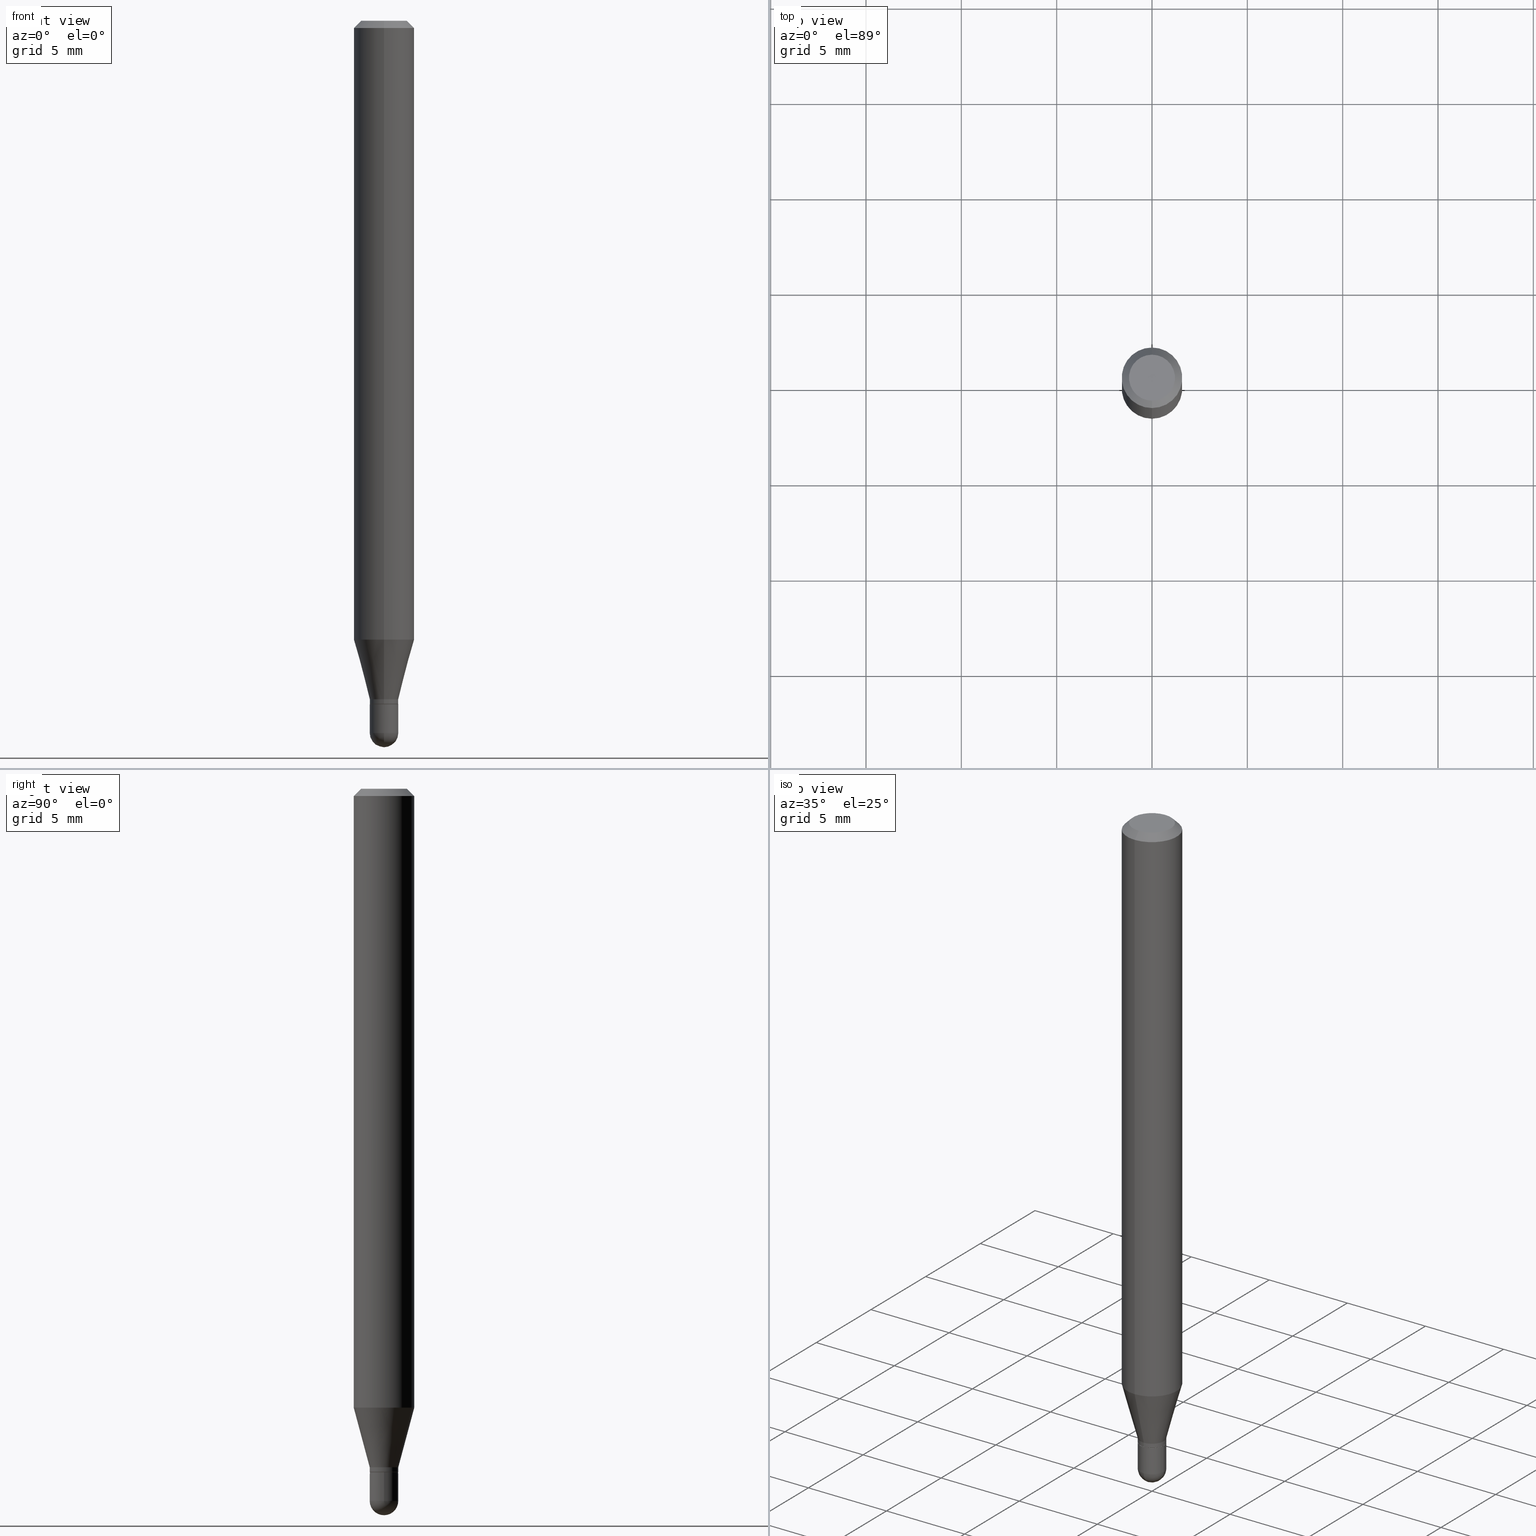
[diagram: canonical four-view strip — front | top / right | iso, engineering-drawing reading convention]
A machine part, canonical four-view strip (front | top / right | iso — engineering-drawing reading convention). The complete STEP part file that produces these views, byte-faithful:
ISO-10303-21;
HEADER;
FILE_DESCRIPTION (( 'STEP AP203' ),
    '1' );
FILE_NAME ('02556.STEP',
    '2024-03-07T20:24:52',
    ( '' ),
    ( '' ),
    'SwSTEP 2.0',
    'SolidWorks 2023',
    '' );
FILE_SCHEMA (( 'CONFIG_CONTROL_DESIGN' ));
ENDSEC;

DATA;
#1 = CIRCLE ( 'NONE', #320, 0.04749999999999999362 ) ;
#2 = CIRCLE ( 'NONE', #128, 0.02899999999999999800 ) ;
#3 = DIRECTION ( 'NONE',  ( -2.445481567641216493E-29, 3.491463063711701769E-15, 1.000000000000000000 ) ) ;
#4 = EDGE_LOOP ( 'NONE', ( #182, #134, #194, #20 ) ) ;
#5 = ADVANCED_FACE ( 'NONE', ( #508 ), #465, .T. ) ;
#6 = DIRECTION ( 'NONE',  ( 1.000000000000000000, -6.982962677686265922E-15, 4.883557194083112340E-29 ) ) ;
#7 = EDGE_CURVE ( 'NONE', #97, #218, #459, .T. ) ;
#8 = AXIS2_PLACEMENT_3D ( 'NONE', #153, #46, #313 ) ;
#9 = LOCAL_TIME ( 15, 24, 52.00000000000000000, #389 ) ;
#10 = DIRECTION ( 'NONE',  ( -2.445481567641216773E-29, 3.491463063711701769E-15, 1.000000000000000000 ) ) ;
#11 = LINE ( 'NONE', #56, #433 ) ;
#12 =( CONVERSION_BASED_UNIT ( 'INCH', #367 ) LENGTH_UNIT ( ) NAMED_UNIT ( #364 ) );
#13 = ORIENTED_EDGE ( 'NONE', *, *, #98, .T. ) ;
#14 = PRODUCT_RELATED_PRODUCT_CATEGORY ( 'detail', '', ( #335 ) ) ;
#15 = DATE_TIME_ROLE ( 'creation_date' ) ;
#16 = DIRECTION ( 'NONE',  ( 1.000000000000000000, -6.982962677686265922E-15, 4.876176775795935793E-29 ) ) ;
#17 = ORIENTED_EDGE ( 'NONE', *, *, #121, .F. ) ;
#18 = AXIS2_PLACEMENT_3D ( 'NONE', #431, #319, #236 ) ;
#19 = CARTESIAN_POINT ( 'NONE',  ( 3.426119676265345091E-29, -4.891539752260095021E-15, -1.401000000000000245 ) ) ;
#20 = ORIENTED_EDGE ( 'NONE', *, *, #385, .F. ) ;
#21 = COORDINATED_UNIVERSAL_TIME_OFFSET ( 5, 0, .BEHIND. ) ;
#22 = CARTESIAN_POINT ( 'NONE',  ( 3.596061879495243621E-29, -5.134223308768845522E-15, -1.470500000000000140 ) ) ;
#23 = ORIENTED_EDGE ( 'NONE', *, *, #151, .F. ) ;
#24 = CALENDAR_DATE ( 2024, 7, 3 ) ;
#25 = FACE_OUTER_BOUND ( 'NONE', #4, .T. ) ;
#26 = EDGE_LOOP ( 'NONE', ( #235, #261, #425, #455 ) ) ;
#27 = EDGE_CURVE ( 'NONE', #292, #479, #399, .T. ) ;
#28 = DATE_AND_TIME ( #219, #69 ) ;
#29 = AXIS2_PLACEMENT_3D ( 'NONE', #63, #328, #217 ) ;
#30 = ORIENTED_EDGE ( 'NONE', *, *, #289, .F. ) ;
#31 = ORIENTED_EDGE ( 'NONE', *, *, #474, .F. ) ;
#32 = DATE_AND_TIME ( #181, #9 ) ;
#33 = CC_DESIGN_DATE_AND_TIME_ASSIGNMENT ( #125, #15, ( #314 ) ) ;
#34 = DIRECTION ( 'NONE',  ( 1.000000000000000000, -6.982962677686250144E-15, 0.000000000000000000 ) ) ;
#35 = EDGE_LOOP ( 'NONE', ( #382, #338, #358, #23 ) ) ;
#36 = APPROVAL_DATE_TIME ( #504, #442 ) ;
#37 = FACE_OUTER_BOUND ( 'NONE', #491, .T. ) ;
#38 = FACE_OUTER_BOUND ( 'NONE', #225, .T. ) ;
#39 = VECTOR ( 'NONE', #42, 39.37007874015748143 ) ;
#40 = DIRECTION ( 'NONE',  ( -2.445481567641216773E-29, 3.491463063711701769E-15, 1.000000000000000000 ) ) ;
#41 = CARTESIAN_POINT ( 'NONE',  ( 3.668222351461905752E-31, -5.237194595567666989E-17, -0.01500000000000032904 ) ) ;
#42 = DIRECTION ( 'NONE',  ( -2.445481567641216773E-29, 3.491463063711701769E-15, 1.000000000000000000 ) ) ;
#43 = DIRECTION ( 'NONE',  ( -2.445481567641216773E-29, 3.491463063711701769E-15, 1.000000000000000000 ) ) ;
#44 = CIRCLE ( 'NONE', #440, 0.06250000000000000000 ) ;
#45 = CIRCLE ( 'NONE', #373, 0.02899999999999999800 ) ;
#46 = DIRECTION ( 'NONE',  ( -2.445481567641216773E-29, 3.491463063711701769E-15, 1.000000000000000000 ) ) ;
#47 = EDGE_CURVE ( 'NONE', #422, #471, #397, .T. ) ;
#48 = CARTESIAN_POINT ( 'NONE',  ( 4.440892098500940720E-16, 0.06249999999999995143, -0.01500000000000054588 ) ) ;
#49 = PLANE ( 'NONE',  #60 ) ;
#50 = PRODUCT_DEFINITION_SHAPE ( 'NONE', 'NONE',  #314 ) ;
#51 = AXIS2_PLACEMENT_3D ( 'NONE', #270, #122, #349 ) ;
#52 = CIRCLE ( 'NONE', #148, 0.02949999999999999845 ) ;
#53 = CARTESIAN_POINT ( 'NONE',  ( 2.060573933704635277E-16, 0.02899999999999507139, -1.411000000000000032 ) ) ;
#54 = EDGE_CURVE ( 'NONE', #500, #415, #252, .T. ) ;
#55 = DIRECTION ( 'NONE',  ( 1.000000000000000000, -6.982962677686250144E-15, 0.000000000000000000 ) ) ;
#56 = CARTESIAN_POINT ( 'NONE',  ( -4.364351673553916201E-16, -0.06250000000000000000, 2.182164414819813606E-16 ) ) ;
#57 = EDGE_LOOP ( 'NONE', ( #116, #406 ) ) ;
#58 = AXIS2_PLACEMENT_3D ( 'NONE', #61, #366, #290 ) ;
#59 = APPROVAL_ROLE ( '' ) ;
#60 = AXIS2_PLACEMENT_3D ( 'NONE', #356, #279, #87 ) ;
#61 = CARTESIAN_POINT ( 'NONE',  ( 3.426119676265345091E-29, -4.891539752260095021E-15, -1.401000000000000245 ) ) ;
#62 = ORIENTED_EDGE ( 'NONE', *, *, #295, .F. ) ;
#63 = CARTESIAN_POINT ( 'NONE',  ( 3.450556485527227711E-29, -4.926480169107677920E-15, -1.411000000000000032 ) ) ;
#64 = ADVANCED_FACE ( 'NONE', ( #157 ), #435, .T. ) ;
#65 = ORIENTED_EDGE ( 'NONE', *, *, #47, .T. ) ;
#66 = ORIENTED_EDGE ( 'NONE', *, *, #280, .T. ) ;
#67 = AXIS2_PLACEMENT_3D ( 'NONE', #301, #40, #88 ) ;
#68 = VERTEX_POINT ( 'NONE', #473 ) ;
#69 = LOCAL_TIME ( 15, 24, 52.00000000000000000, #271 ) ;
#70 = FACE_OUTER_BOUND ( 'NONE', #391, .T. ) ;
#71 = EDGE_CURVE ( 'NONE', #502, #453, #339, .T. ) ;
#72 = CYLINDRICAL_SURFACE ( 'NONE', #99, 0.06250000000000000000 ) ;
#73 = EDGE_LOOP ( 'NONE', ( #329, #400, #429, #322, #215 ) ) ;
#74 = DIRECTION ( 'NONE',  ( -2.445481567641216773E-29, 3.491463063711701769E-15, 1.000000000000000000 ) ) ;
#75 = CARTESIAN_POINT ( 'NONE',  ( 3.664419098448086283E-29, -5.242641070350946204E-15, -1.500000000000000222 ) ) ;
#76 = DIRECTION ( 'NONE',  ( -2.445468806185136877E-29, 3.491481338843145188E-15, 1.000000000000000000 ) ) ;
#77 = DIRECTION ( 'NONE',  ( -6.982962677686265922E-15, -1.000000000000000000, 4.370956789862821150E-15 ) ) ;
#78 = CIRCLE ( 'NONE', #222, 0.02949999999999992212 ) ;
#79 = CARTESIAN_POINT ( 'NONE',  ( 2.096101070492299629E-16, 0.02950000000000006437, -1.029981603794954133E-16 ) ) ;
#80 = PERSON ( 'UNSPECIFIED', 'UNSPECIFIED', 'UNSPECIFIED', ('UNSPECIFIED'), ('UNSPECIFIED'), ('UNSPECIFIED') ) ;
#81 = FACE_OUTER_BOUND ( 'NONE', #372, .T. ) ;
#82 = CARTESIAN_POINT ( 'NONE',  ( -0.02950000000000000192, 2.096101070492295684E-16, -1.451085851625197342E-30 ) ) ;
#83 = DIRECTION ( 'NONE',  ( -2.445481567641216773E-29, 3.491463063711701769E-15, 1.000000000000000000 ) ) ;
#84 = CONICAL_SURFACE ( 'NONE', #8, 0.02950000000000019967, 0.2617993877991505736 ) ;
#85 = AXIS2_PLACEMENT_3D ( 'NONE', #147, #257, #308 ) ;
#86 = APPROVAL ( #374, 'UNSPECIFIED' ) ;
#87 = DIRECTION ( 'NONE',  ( 6.982962677686265922E-15, 1.000000000000000000, -3.491463063711701769E-15 ) ) ;
#88 = DIRECTION ( 'NONE',  ( -6.982962677686265133E-15, -1.000000000000000000, 3.491463063711701375E-15 ) ) ;
#89 = CARTESIAN_POINT ( 'NONE',  ( 3.426119676265345091E-29, -4.891539752260095021E-15, -1.401000000000000245 ) ) ;
#90 = EDGE_CURVE ( 'NONE', #142, #288, #316, .T. ) ;
#91 = AXIS2_PLACEMENT_3D ( 'NONE', #408, #487, #176 ) ;
#92 = CC_DESIGN_APPROVAL ( #86, ( #314 ) ) ;
#93 = DIRECTION ( 'NONE',  ( -6.982962677686265922E-15, -1.000000000000000000, 0.000000000000000000 ) ) ;
#94 = LINE ( 'NONE', #312, #234 ) ;
#95 = CARTESIAN_POINT ( 'NONE',  ( -2.059973989917119804E-16, -0.02950000000000509159, -1.401000000000000245 ) ) ;
#96 = CARTESIAN_POINT ( 'NONE',  ( 3.450574491941757256E-29, -4.926454382897210213E-15, -1.411000000000000032 ) ) ;
#97 = VERTEX_POINT ( 'NONE', #75 ) ;
#98 = EDGE_CURVE ( 'NONE', #479, #471, #161, .T. ) ;
#99 = AXIS2_PLACEMENT_3D ( 'NONE', #189, #460, #228 ) ;
#100 = VECTOR ( 'NONE', #310, 39.37007874015748143 ) ;
#101 = DIRECTION ( 'NONE',  ( -2.445481567641216773E-29, 3.491463063711701769E-15, 1.000000000000000000 ) ) ;
#102 = ORIENTED_EDGE ( 'NONE', *, *, #357, .T. ) ;
#103 = DIRECTION ( 'NONE',  ( -2.445481567641216773E-29, 3.491463063711701769E-15, 1.000000000000000000 ) ) ;
#104 = ORIENTED_EDGE ( 'NONE', *, *, #411, .F. ) ;
#105 = EDGE_LOOP ( 'NONE', ( #264, #177, #149, #143 ) ) ;
#106 = CC_DESIGN_PERSON_AND_ORGANIZATION_ASSIGNMENT ( #332, #130, ( #335 ) ) ;
#107 = EDGE_LOOP ( 'NONE', ( #282, #66, #30, #104 ) ) ;
#108 = EDGE_CURVE ( 'NONE', #297, #428, #1, .T. ) ;
#109 = LINE ( 'NONE', #266, #419 ) ;
#110 = ORIENTED_EDGE ( 'NONE', *, *, #285, .T. ) ;
#111 = DIRECTION ( 'NONE',  ( -2.445468806185136877E-29, 3.491481338843145188E-15, 1.000000000000000000 ) ) ;
#112 = CARTESIAN_POINT ( 'NONE',  ( 0.02950000000000000192, -5.236349137930006242E-15, -1.470500000000000140 ) ) ;
#113 = APPROVAL_ROLE ( '' ) ;
#114 = ADVANCED_FACE ( 'NONE', ( #193 ), #84, .T. ) ;
#115 = ORIENTED_EDGE ( 'NONE', *, *, #98, .F. ) ;
#116 = ORIENTED_EDGE ( 'NONE', *, *, #376, .T. ) ;
#117 = LINE ( 'NONE', #426, #100 ) ;
#118 = DIRECTION ( 'NONE',  ( -6.982962677686265922E-15, -1.000000000000000000, 3.491463063711701769E-15 ) ) ;
#119 = FACE_OUTER_BOUND ( 'NONE', #105, .T. ) ;
#120 = MANIFOLD_SOLID_BREP ( 'Body-Move/Copy2[2]', #467 ) ;
#121 = EDGE_CURVE ( 'NONE', #267, #422, #470, .T. ) ;
#122 = DIRECTION ( 'NONE',  ( -2.445468806185136597E-29, 3.491481338843145583E-15, 1.000000000000000000 ) ) ;
#123 = CARTESIAN_POINT ( 'NONE',  ( -4.364351673553605587E-16, -0.06250000000000449640, -1.277842323350228293 ) ) ;
#124 = CC_DESIGN_APPROVAL ( #442, ( #347 ) ) ;
#125 = DATE_AND_TIME ( #365, #190 ) ;
#126 = DIRECTION ( 'NONE',  ( -2.445468806185136597E-29, 3.491481338843145583E-15, 1.000000000000000000 ) ) ;
#127 = AXIS2_PLACEMENT_3D ( 'NONE', #454, #417, #16 ) ;
#128 = AXIS2_PLACEMENT_3D ( 'NONE', #323, #475, #318 ) ;
#129 = APPLICATION_PROTOCOL_DEFINITION ( 'international standard', 'config_control_design', 1994, #350 ) ;
#130 = PERSON_AND_ORGANIZATION_ROLE ( 'design_owner' ) ;
#131 = FACE_OUTER_BOUND ( 'NONE', #35, .T. ) ;
#132 = ADVANCED_FACE ( 'NONE', ( #81 ), #231, .F. ) ;
#133 = DIRECTION ( 'NONE',  ( -2.445481567641216773E-29, 3.491463063711701769E-15, 1.000000000000000000 ) ) ;
#134 = ORIENTED_EDGE ( 'NONE', *, *, #121, .T. ) ;
#135 = AXIS2_PLACEMENT_3D ( 'NONE', #483, #126, #55 ) ;
#136 = AXIS2_PLACEMENT_3D ( 'NONE', #244, #83, #159 ) ;
#137 = DIRECTION ( 'NONE',  ( -6.982962677686265922E-15, -1.000000000000000000, 3.483106191921935554E-15 ) ) ;
#138 = VERTEX_POINT ( 'NONE', #276 ) ;
#139 = APPROVAL_DATE_TIME ( #28, #416 ) ;
#140 = ADVANCED_FACE ( 'NONE', ( #38 ), #201, .T. ) ;
#141 = CARTESIAN_POINT ( 'NONE',  ( 0.02950000000000000192, -2.059973989917448660E-16, 1.438472148859801150E-30 ) ) ;
#142 = VERTEX_POINT ( 'NONE', #171 ) ;
#143 = ORIENTED_EDGE ( 'NONE', *, *, #260, .F. ) ;
#144 = CARTESIAN_POINT ( 'NONE',  ( -4.364351673553912750E-16, -0.06250000000000005551, -0.01500000000000011047 ) ) ;
#145 = DATE_TIME_ROLE ( 'classification_date' ) ;
#146 = CIRCLE ( 'NONE', #418, 0.06250000000000000000 ) ;
#147 = CARTESIAN_POINT ( 'NONE',  ( 8.024794349539244775E-45, -1.145715978236695572E-30, -3.281478157809032871E-16 ) ) ;
#148 = AXIS2_PLACEMENT_3D ( 'NONE', #183, #432, #186 ) ;
#149 = ORIENTED_EDGE ( 'NONE', *, *, #162, .F. ) ;
#150 = DIRECTION ( 'NONE',  ( 1.000000000000000000, -7.105427357601001070E-15, 4.926315508542082329E-29 ) ) ;
#151 = EDGE_CURVE ( 'NONE', #267, #68, #78, .T. ) ;
#152 = PERSON_AND_ORGANIZATION_ROLE ( 'classification_officer' ) ;
#153 = CARTESIAN_POINT ( 'NONE',  ( 3.426119676265345091E-29, -4.891539752260095021E-15, -1.401000000000000245 ) ) ;
#154 = DIRECTION ( 'NONE',  ( -1.807323732225332111E-15, -0.2588190451025184635, 0.9659258262890689783 ) ) ;
#155 = AXIS2_PLACEMENT_3D ( 'NONE', #355, #3, #118 ) ;
#156 = SECURITY_CLASSIFICATION ( '', '', #187 ) ;
#157 = FACE_OUTER_BOUND ( 'NONE', #185, .T. ) ;
#158 = CARTESIAN_POINT ( 'NONE',  ( 2.096101070492652151E-16, 0.02949999999999530775, -1.401000000000000245 ) ) ;
#159 = DIRECTION ( 'NONE',  ( -6.982962677686265133E-15, -1.000000000000000000, 0.000000000000000000 ) ) ;
#160 = CARTESIAN_POINT ( 'NONE',  ( 3.668222351461905752E-31, -5.237194595567666989E-17, -0.01500000000000032904 ) ) ;
#161 = CIRCLE ( 'NONE', #371, 0.06250000000000000000 ) ;
#162 = EDGE_CURVE ( 'NONE', #142, #500, #354, .T. ) ;
#163 = LINE ( 'NONE', #53, #315 ) ;
#164 = EDGE_LOOP ( 'NONE', ( #246, #377, #229, #505 ) ) ;
#165 = ADVANCED_BREP_SHAPE_REPRESENTATION ( '02556', ( #283, #120, #468 ), #427 ) ;
#166 = DIRECTION ( 'NONE',  ( -2.445468806185136597E-29, 3.491481338843145583E-15, 1.000000000000000000 ) ) ;
#167 = ORIENTED_EDGE ( 'NONE', *, *, #401, .F. ) ;
#168 = CIRCLE ( 'NONE', #58, 0.02950000000000019967 ) ;
#169 = VECTOR ( 'NONE', #103, 39.37007874015748143 ) ;
#170 =( NAMED_UNIT ( * ) PLANE_ANGLE_UNIT ( ) SI_UNIT ( $, .RADIAN. ) );
#171 = CARTESIAN_POINT ( 'NONE',  ( -0.02950000000000000192, -4.820741631889032374E-15, -1.470500000000000140 ) ) ;
#172 = ADVANCED_FACE ( 'NONE', ( #25 ), #296, .T. ) ;
#173 = CARTESIAN_POINT ( 'NONE',  ( 2.096101070492661026E-16, 0.02949999999999495040, -1.470500000000000140 ) ) ;
#174 = VERTEX_POINT ( 'NONE', #369 ) ;
#175 = CARTESIAN_POINT ( 'NONE',  ( 0.000000000000000000, 0.000000000000000000, 0.000000000000000000 ) ) ;
#176 = DIRECTION ( 'NONE',  ( -6.982962677686265922E-15, -1.000000000000000000, 0.000000000000000000 ) ) ;
#177 = ORIENTED_EDGE ( 'NONE', *, *, #273, .T. ) ;
#178 = EDGE_CURVE ( 'NONE', #453, #502, #146, .T. ) ;
#179 = LOCAL_TIME ( 15, 24, 52.00000000000000000, #21 ) ;
#180 = EDGE_LOOP ( 'NONE', ( #334, #309, #456, #484 ) ) ;
#181 = CALENDAR_DATE ( 2024, 7, 3 ) ;
#182 = ORIENTED_EDGE ( 'NONE', *, *, #289, .T. ) ;
#183 = CARTESIAN_POINT ( 'NONE',  ( 3.450556485527227711E-29, -4.926480169107677920E-15, -1.411000000000000032 ) ) ;
#184 = DIRECTION ( 'NONE',  ( -2.445468806185136597E-29, 3.491481338843145583E-15, 1.000000000000000000 ) ) ;
#185 = EDGE_LOOP ( 'NONE', ( #13, #110, #341, #421 ) ) ;
#186 = DIRECTION ( 'NONE',  ( 1.000000000000000000, -6.982962677686250933E-15, 0.000000000000000000 ) ) ;
#187 = SECURITY_CLASSIFICATION_LEVEL ( 'unclassified' ) ;
#188 = CIRCLE ( 'NONE', #286, 0.02950000000000000192 ) ;
#189 = CARTESIAN_POINT ( 'NONE',  ( 0.000000000000000000, 0.000000000000000000, 0.000000000000000000 ) ) ;
#190 = LOCAL_TIME ( 15, 24, 52.00000000000000000, #482 ) ;
#191 = PERSON_AND_ORGANIZATION_ROLE ( 'creator' ) ;
#192 = FACE_OUTER_BOUND ( 'NONE', #26, .T. ) ;
#193 = FACE_OUTER_BOUND ( 'NONE', #164, .T. ) ;
#194 = ORIENTED_EDGE ( 'NONE', *, *, #243, .F. ) ;
#195 = ADVANCED_FACE ( 'NONE', ( #131 ), #402, .T. ) ;
#196 = ORIENTED_EDGE ( 'NONE', *, *, #265, .T. ) ;
#197 = CARTESIAN_POINT ( 'NONE',  ( 0.000000000000000000, 0.000000000000000000, 0.000000000000000000 ) ) ;
#198 = AXIS2_PLACEMENT_3D ( 'NONE', #96, #101, #287 ) ;
#199 = CC_DESIGN_APPROVAL ( #416, ( #156 ) ) ;
#200 = EDGE_CURVE ( 'NONE', #479, #453, #11, .T. ) ;
#201 = CYLINDRICAL_SURFACE ( 'NONE', #67, 0.02950000000000006437 ) ;
#202 = DIRECTION ( 'NONE',  ( -6.982962677686265922E-15, -1.000000000000000000, 0.000000000000000000 ) ) ;
#203 = ADVANCED_FACE ( 'NONE', ( #291 ), #211, .T. ) ;
#204 = CIRCLE ( 'NONE', #29, 0.02949999999999999845 ) ;
#205 = PERSON_AND_ORGANIZATION ( #80, #263 ) ;
#206 = DIRECTION ( 'NONE',  ( -2.445481567641216773E-29, 3.491463063711701769E-15, 1.000000000000000000 ) ) ;
#207 = ORIENTED_EDGE ( 'NONE', *, *, #54, .F. ) ;
#208 = MECHANICAL_CONTEXT ( 'NONE', #350, 'mechanical' ) ;
#209 = CARTESIAN_POINT ( 'NONE',  ( 0.000000000000000000, 0.000000000000000000, 0.000000000000000000 ) ) ;
#210 = EDGE_CURVE ( 'NONE', #422, #292, #486, .T. ) ;
#211 = CYLINDRICAL_SURFACE ( 'NONE', #127, 0.02950000000000000192 ) ;
#212 = AXIS2_PLACEMENT_3D ( 'NONE', #240, #150, #311 ) ;
#213 = AXIS2_PLACEMENT_3D ( 'NONE', #89, #10, #472 ) ;
#214 = CARTESIAN_POINT ( 'NONE',  ( 3.668222351461905752E-31, -5.237194595567666989E-17, -0.01500000000000032904 ) ) ;
#215 = ORIENTED_EDGE ( 'NONE', *, *, #423, .F. ) ;
#216 = UNCERTAINTY_MEASURE_WITH_UNIT (LENGTH_MEASURE( 1.000000000000000082E-05 ), #12, 'distance_accuracy_value', 'NONE');
#217 = DIRECTION ( 'NONE',  ( 1.000000000000000000, -6.982962677686250933E-15, 0.000000000000000000 ) ) ;
#218 = VERTEX_POINT ( 'NONE', #173 ) ;
#219 = CALENDAR_DATE ( 2024, 7, 3 ) ;
#220 = ORIENTED_EDGE ( 'NONE', *, *, #357, .F. ) ;
#221 = CC_DESIGN_PERSON_AND_ORGANIZATION_ASSIGNMENT ( #205, #247, ( #314 ) ) ;
#222 = AXIS2_PLACEMENT_3D ( 'NONE', #414, #251, #413 ) ;
#223 = PERSON_AND_ORGANIZATION ( #80, #263 ) ;
#224 = CARTESIAN_POINT ( 'NONE',  ( -3.773273898774340269E-16, -0.04749999999999999362, -1.623033202545974501E-16 ) ) ;
#225 = EDGE_LOOP ( 'NONE', ( #17, #239, #493, #489 ) ) ;
#226 = CARTESIAN_POINT ( 'NONE',  ( 2.059973989917793540E-16, 0.02949999999999507183, -1.411000000000000032 ) ) ;
#227 = DIRECTION ( 'NONE',  ( -6.982962677686265133E-15, -1.000000000000000000, 0.000000000000000000 ) ) ;
#228 = DIRECTION ( 'NONE',  ( -6.982962677686265922E-15, -1.000000000000000000, 3.491463063711701769E-15 ) ) ;
#229 = ORIENTED_EDGE ( 'NONE', *, *, #27, .T. ) ;
#230 = CARTESIAN_POINT ( 'NONE',  ( 0.02949999999999999845, -5.132477568099422441E-15, -1.411000000000000032 ) ) ;
#231 = PLANE ( 'NONE',  #155 ) ;
#232 = DIRECTION ( 'NONE',  ( -4.937700262164674260E-15, -0.7071067811865632269, 0.7071067811865319186 ) ) ;
#233 = CIRCLE ( 'NONE', #245, 0.02950000000000000192 ) ;
#234 = VECTOR ( 'NONE', #232, 39.37007874015748143 ) ;
#235 = ORIENTED_EDGE ( 'NONE', *, *, #258, .F. ) ;
#236 = DIRECTION ( 'NONE',  ( -6.982962677686265922E-15, -1.000000000000000000, 3.491463063711701769E-15 ) ) ;
#237 = CARTESIAN_POINT ( 'NONE',  ( 3.840629472727447874E-16, 0.04749999999999999362, -4.939923113072091241E-16 ) ) ;
#238 = CC_DESIGN_PERSON_AND_ORGANIZATION_ASSIGNMENT ( #499, #152, ( #156 ) ) ;
#239 = ORIENTED_EDGE ( 'NONE', *, *, #151, .T. ) ;
#240 = CARTESIAN_POINT ( 'NONE',  ( 3.593539138942164173E-29, -5.137836016826330348E-15, -1.470500000000000140 ) ) ;
#241 = CARTESIAN_POINT ( 'NONE',  ( -2.059973989917094905E-16, -0.02950000000000521996, -1.470500000000000140 ) ) ;
#242 = APPLICATION_CONTEXT ( 'configuration controlled 3d designs of mechanical parts and assemblies' ) ;
#243 = EDGE_CURVE ( 'NONE', #292, #422, #168, .T. ) ;
#244 = CARTESIAN_POINT ( 'NONE',  ( 3.450574491941757256E-29, -4.926454382897210213E-15, -1.411000000000000032 ) ) ;
#245 = AXIS2_PLACEMENT_3D ( 'NONE', #22, #166, #254 ) ;
#246 = ORIENTED_EDGE ( 'NONE', *, *, #47, .F. ) ;
#247 = PERSON_AND_ORGANIZATION_ROLE ( 'creator' ) ;
#248 = LINE ( 'NONE', #141, #272 ) ;
#249 = ORIENTED_EDGE ( 'NONE', *, *, #7, .T. ) ;
#250 = DESIGN_CONTEXT ( 'detailed design', #242, 'design' ) ;
#251 = DIRECTION ( 'NONE',  ( -2.445481567641216773E-29, 3.491463063711701769E-15, 1.000000000000000000 ) ) ;
#252 = CIRCLE ( 'NONE', #51, 0.02950000000000000192 ) ;
#253 = CC_DESIGN_SECURITY_CLASSIFICATION ( #156, ( #347 ) ) ;
#254 = DIRECTION ( 'NONE',  ( 1.000000000000000000, -6.982962677686250144E-15, 0.000000000000000000 ) ) ;
#255 = EDGE_LOOP ( 'NONE', ( #360, #512, #259, #62, #102 ) ) ;
#256 = APPROVAL_DATE_TIME ( #368, #86 ) ;
#257 = DIRECTION ( 'NONE',  ( -2.445481567641216773E-29, 3.491463063711701769E-15, 1.000000000000000000 ) ) ;
#258 = EDGE_CURVE ( 'NONE', #297, #453, #451, .T. ) ;
#259 = ORIENTED_EDGE ( 'NONE', *, *, #265, .F. ) ;
#260 = EDGE_CURVE ( 'NONE', #218, #142, #233, .T. ) ;
#261 = ORIENTED_EDGE ( 'NONE', *, *, #376, .F. ) ;
#262 = CIRCLE ( 'NONE', #91, 0.02950000000000016498 ) ;
#263 = ORGANIZATION ( 'UNSPECIFIED', 'UNSPECIFIED', '' ) ;
#264 = ORIENTED_EDGE ( 'NONE', *, *, #7, .F. ) ;
#265 = EDGE_CURVE ( 'NONE', #387, #288, #204, .T. ) ;
#266 = CARTESIAN_POINT ( 'NONE',  ( -2.059973989917452604E-16, -0.02950000000000006437, 1.029981603794954133E-16 ) ) ;
#267 = VERTEX_POINT ( 'NONE', #379 ) ;
#268 = PERSON_AND_ORGANIZATION ( #80, #263 ) ;
#269 = DIRECTION ( 'NONE',  ( 2.445481567641216773E-29, -3.491463063711701769E-15, -1.000000000000000000 ) ) ;
#270 = CARTESIAN_POINT ( 'NONE',  ( 3.596061879495243621E-29, -5.134223308768845522E-15, -1.470500000000000140 ) ) ;
#271 = COORDINATED_UNIVERSAL_TIME_OFFSET ( 5, 0, .BEHIND. ) ;
#272 = VECTOR ( 'NONE', #76, 39.37007874015748143 ) ;
#273 = EDGE_CURVE ( 'NONE', #97, #500, #262, .T. ) ;
#274 = CARTESIAN_POINT ( 'NONE',  ( 3.593539138942164173E-29, -5.137836016826330348E-15, -1.470500000000000140 ) ) ;
#275 = DIRECTION ( 'NONE',  ( 1.000000000000000000, -6.982962677686265922E-15, 4.883557194083112340E-29 ) ) ;
#276 = CARTESIAN_POINT ( 'NONE',  ( -2.025059176528671736E-16, -0.02900000000000492462, -1.411000000000000032 ) ) ;
#277 = AXIS2_PLACEMENT_3D ( 'NONE', #41, #317, #464 ) ;
#278 = DIRECTION ( 'NONE',  ( -6.982962677686266711E-15, -1.000000000000000000, 3.491463063711702164E-15 ) ) ;
#279 = DIRECTION ( 'NONE',  ( 2.445481567641216493E-29, -3.491463063711701769E-15, -1.000000000000000000 ) ) ;
#280 = EDGE_CURVE ( 'NONE', #174, #267, #163, .T. ) ;
#281 = DIRECTION ( 'NONE',  ( 2.445481567641216773E-29, -3.491463063711701769E-15, -1.000000000000000000 ) ) ;
#282 = ORIENTED_EDGE ( 'NONE', *, *, #401, .T. ) ;
#283 = MANIFOLD_SOLID_BREP ( 'Body-Move/Copy2[1]', #394 ) ;
#284 = CARTESIAN_POINT ( 'NONE',  ( 3.449351751157936536E-29, -4.924708651365355479E-15, -1.410500000000000087 ) ) ;
#285 = EDGE_CURVE ( 'NONE', #471, #502, #447, .T. ) ;
#286 = AXIS2_PLACEMENT_3D ( 'NONE', #390, #184, #34 ) ;
#287 = DIRECTION ( 'NONE',  ( -6.982962677686265133E-15, -1.000000000000000000, 0.000000000000000000 ) ) ;
#288 = VERTEX_POINT ( 'NONE', #325 ) ;
#289 = EDGE_CURVE ( 'NONE', #68, #267, #496, .T. ) ;
#290 = DIRECTION ( 'NONE',  ( -6.982962677686265922E-15, -1.000000000000000000, 0.000000000000000000 ) ) ;
#291 = FACE_OUTER_BOUND ( 'NONE', #255, .T. ) ;
#292 = VERTEX_POINT ( 'NONE', #95 ) ;
#293 = AXIS2_PLACEMENT_3D ( 'NONE', #386, #269, #501 ) ;
#294 = APPROVAL_PERSON_ORGANIZATION ( #378, #86, #59 ) ;
#295 = EDGE_CURVE ( 'NONE', #415, #387, #248, .T. ) ;
#296 = CYLINDRICAL_SURFACE ( 'NONE', #407, 0.02950000000000006437 ) ;
#297 = VERTEX_POINT ( 'NONE', #224 ) ;
#298 = EDGE_CURVE ( 'NONE', #471, #479, #44, .T. ) ;
#299 = SHAPE_DEFINITION_REPRESENTATION ( #50, #165 ) ;
#300 = DIRECTION ( 'NONE',  ( -2.445481567641216773E-29, 3.491463063711701769E-15, 1.000000000000000000 ) ) ;
#301 = CARTESIAN_POINT ( 'NONE',  ( 0.000000000000000000, 0.000000000000000000, 0.000000000000000000 ) ) ;
#302 = ORIENTED_EDGE ( 'NONE', *, *, #285, .F. ) ;
#303 = ORIENTED_EDGE ( 'NONE', *, *, #27, .F. ) ;
#304 = ADVANCED_FACE ( 'NONE', ( #192 ), #476, .T. ) ;
#305 = VECTOR ( 'NONE', #111, 39.37007874015748143 ) ;
#306 = CONICAL_SURFACE ( 'NONE', #213, 0.02950000000000019967, 0.2617993877991505736 ) ;
#307 = APPROVAL_STATUS ( 'not_yet_approved' ) ;
#308 = DIRECTION ( 'NONE',  ( -6.982962677686266711E-15, -1.000000000000000000, 3.491463063711702164E-15 ) ) ;
#309 = ORIENTED_EDGE ( 'NONE', *, *, #258, .T. ) ;
#310 = DIRECTION ( 'NONE',  ( 4.937700262164548042E-15, 0.7071067811865451302, -0.7071067811865499042 ) ) ;
#311 = DIRECTION ( 'NONE',  ( 7.105427357601001070E-15, 1.000000000000000000, 0.000000000000000000 ) ) ;
#312 = CARTESIAN_POINT ( 'NONE',  ( -2.025059176528671736E-16, -0.02900000000000492462, -1.411000000000000032 ) ) ;
#313 = DIRECTION ( 'NONE',  ( -6.982962677686265922E-15, -1.000000000000000000, 0.000000000000000000 ) ) ;
#314 = PRODUCT_DEFINITION ( 'UNKNOWN', '', #347, #250 ) ;
#315 = VECTOR ( 'NONE', #337, 39.37007874015748143 ) ;
#316 = LINE ( 'NONE', #82, #305 ) ;
#317 = DIRECTION ( 'NONE',  ( -2.445481567641216773E-29, 3.491463063711701769E-15, 1.000000000000000000 ) ) ;
#318 = DIRECTION ( 'NONE',  ( -6.982962677686265133E-15, -1.000000000000000000, 0.000000000000000000 ) ) ;
#319 = DIRECTION ( 'NONE',  ( -2.445481567641216773E-29, 3.491463063711701769E-15, 1.000000000000000000 ) ) ;
#320 = AXIS2_PLACEMENT_3D ( 'NONE', #434, #403, #278 ) ;
#321 = FACE_OUTER_BOUND ( 'NONE', #458, .T. ) ;
#322 = ORIENTED_EDGE ( 'NONE', *, *, #295, .T. ) ;
#323 = CARTESIAN_POINT ( 'NONE',  ( 3.450574491941757256E-29, -4.926454382897210213E-15, -1.411000000000000032 ) ) ;
#324 = ADVANCED_FACE ( 'NONE', ( #37 ), #72, .T. ) ;
#325 = CARTESIAN_POINT ( 'NONE',  ( -0.02949999999999999845, -4.820741631889032374E-15, -1.411000000000000032 ) ) ;
#326 = CARTESIAN_POINT ( 'NONE',  ( 3.593539138942164173E-29, -5.137836016826330348E-15, -1.470500000000000140 ) ) ;
#327 = PERSON_AND_ORGANIZATION ( #80, #263 ) ;
#328 = DIRECTION ( 'NONE',  ( -2.445468806185136597E-29, 3.491481338843145583E-15, 1.000000000000000000 ) ) ;
#329 = ORIENTED_EDGE ( 'NONE', *, *, #90, .F. ) ;
#330 = AXIS2_PLACEMENT_3D ( 'NONE', #274, #275, #393 ) ;
#331 = AXIS2_PLACEMENT_3D ( 'NONE', #226, #343, #503 ) ;
#332 = PERSON_AND_ORGANIZATION ( #80, #263 ) ;
#333 = DIRECTION ( 'NONE',  ( -6.982962677686265133E-15, -1.000000000000000000, 3.491463063711701375E-15 ) ) ;
#334 = ORIENTED_EDGE ( 'NONE', *, *, #108, .F. ) ;
#335 = PRODUCT ( '02556', '02556', '', ( #208 ) ) ;
#336 = ORIENTED_EDGE ( 'NONE', *, *, #298, .T. ) ;
#337 = DIRECTION ( 'NONE',  ( 5.024295867788190974E-15, 0.7071067811865681119, 0.7071067811865270336 ) ) ;
#338 = ORIENTED_EDGE ( 'NONE', *, *, #474, .T. ) ;
#339 = CIRCLE ( 'NONE', #277, 0.06250000000000000000 ) ;
#340 = AXIS2_PLACEMENT_3D ( 'NONE', #326, #6, #202 ) ;
#341 = ORIENTED_EDGE ( 'NONE', *, *, #178, .F. ) ;
#342 = ORIENTED_EDGE ( 'NONE', *, *, #243, .T. ) ;
#343 = DIRECTION ( 'NONE',  ( 2.438088387897960049E-29, -3.491481338843145188E-15, -1.000000000000000000 ) ) ;
#344 = ORIENTED_EDGE ( 'NONE', *, *, #71, .F. ) ;
#345 = FACE_OUTER_BOUND ( 'NONE', #73, .T. ) ;
#346 = VECTOR ( 'NONE', #353, 39.37007874015748143 ) ;
#347 = PRODUCT_DEFINITION_FORMATION_WITH_SPECIFIED_SOURCE ( 'ANY', '', #335, .NOT_KNOWN. ) ;
#348 = CARTESIAN_POINT ( 'NONE',  ( 3.450574491941757256E-29, -4.926454382897210213E-15, -1.411000000000000032 ) ) ;
#349 = DIRECTION ( 'NONE',  ( 1.000000000000000000, -6.982962677686250144E-15, 0.000000000000000000 ) ) ;
#350 = APPLICATION_CONTEXT ( 'configuration controlled 3d designs of mechanical parts and assemblies' ) ;
#351 = CARTESIAN_POINT ( 'NONE',  ( -2.059973989917119804E-16, -0.02950000000000509159, -1.401000000000000245 ) ) ;
#352 = CC_DESIGN_PERSON_AND_ORGANIZATION_ASSIGNMENT ( #223, #509, ( #347 ) ) ;
#353 = DIRECTION ( 'NONE',  ( 1.839019923739602287E-15, 0.2588190451025252359, 0.9659258262890670910 ) ) ;
#354 = CIRCLE ( 'NONE', #135, 0.02950000000000000192 ) ;
#355 = CARTESIAN_POINT ( 'NONE',  ( 3.450574491941757256E-29, -4.926454382897210213E-15, -1.411000000000000032 ) ) ;
#356 = CARTESIAN_POINT ( 'NONE',  ( 3.316907271900976096E-16, 0.04749999999999999362, -3.299184034167574312E-16 ) ) ;
#357 = EDGE_CURVE ( 'NONE', #415, #218, #188, .T. ) ;
#358 = ORIENTED_EDGE ( 'NONE', *, *, #411, .T. ) ;
#359 = SPHERICAL_SURFACE ( 'NONE', #340, 0.02950000000000016498 ) ;
#360 = ORIENTED_EDGE ( 'NONE', *, *, #260, .T. ) ;
#361 = AXIS2_PLACEMENT_3D ( 'NONE', #284, #444, #93 ) ;
#362 = DIRECTION ( 'NONE',  ( 1.000000000000000000, -6.982962677686265922E-15, 4.876176775795935793E-29 ) ) ;
#363 = CC_DESIGN_DATE_AND_TIME_ASSIGNMENT ( #32, #145, ( #156 ) ) ;
#364 = DIMENSIONAL_EXPONENTS ( 1.000000000000000000, 0.000000000000000000, 0.000000000000000000, 0.000000000000000000, 0.000000000000000000, 0.000000000000000000, 0.000000000000000000 ) ;
#365 = CALENDAR_DATE ( 2024, 7, 3 ) ;
#366 = DIRECTION ( 'NONE',  ( -2.445481567641216773E-29, 3.491463063711701769E-15, 1.000000000000000000 ) ) ;
#367 = LENGTH_MEASURE_WITH_UNIT ( LENGTH_MEASURE( 0.02539999999999999897 ), #481 );
#368 = DATE_AND_TIME ( #24, #179 ) ;
#369 = CARTESIAN_POINT ( 'NONE',  ( 2.078337502098634593E-16, 0.02899999999999507139, -1.411000000000000032 ) ) ;
#370 = DIRECTION ( 'NONE',  ( -6.982962677686265922E-15, -1.000000000000000000, 0.000000000000000000 ) ) ;
#371 = AXIS2_PLACEMENT_3D ( 'NONE', #510, #43, #77 ) ;
#372 = EDGE_LOOP ( 'NONE', ( #167, #31 ) ) ;
#373 = AXIS2_PLACEMENT_3D ( 'NONE', #348, #430, #227 ) ;
#374 = APPROVAL_STATUS ( 'not_yet_approved' ) ;
#375 = CARTESIAN_POINT ( 'NONE',  ( -4.287811248607203282E-16, -0.06250000000000005551, -0.01500000000000011047 ) ) ;
#376 = EDGE_CURVE ( 'NONE', #428, #297, #410, .T. ) ;
#377 = ORIENTED_EDGE ( 'NONE', *, *, #210, .T. ) ;
#378 = PERSON_AND_ORGANIZATION ( #80, #263 ) ;
#379 = CARTESIAN_POINT ( 'NONE',  ( 2.096101070492627499E-16, 0.02949999999999489836, -1.410500000000000087 ) ) ;
#380 = ORIENTED_EDGE ( 'NONE', *, *, #423, .T. ) ;
#381 = PERSON_AND_ORGANIZATION ( #80, #263 ) ;
#382 = ORIENTED_EDGE ( 'NONE', *, *, #280, .F. ) ;
#383 = VECTOR ( 'NONE', #154, 39.37007874015748854 ) ;
#384 = APPROVAL_PERSON_ORGANIZATION ( #327, #442, #446 ) ;
#385 = EDGE_CURVE ( 'NONE', #68, #292, #109, .T. ) ;
#386 = CARTESIAN_POINT ( 'NONE',  ( 3.668222351461905752E-31, -5.237194595567666989E-17, -0.01500000000000032904 ) ) ;
#387 = VERTEX_POINT ( 'NONE', #230 ) ;
#388 = PLANE ( 'NONE',  #331 ) ;
#389 = COORDINATED_UNIVERSAL_TIME_OFFSET ( 5, 0, .BEHIND. ) ;
#390 = CARTESIAN_POINT ( 'NONE',  ( 3.596061879495243621E-29, -5.134223308768845522E-15, -1.470500000000000140 ) ) ;
#391 = EDGE_LOOP ( 'NONE', ( #196, #380 ) ) ;
#392 = COORDINATED_UNIVERSAL_TIME_OFFSET ( 5, 0, .BEHIND. ) ;
#393 = DIRECTION ( 'NONE',  ( -6.982962677686265922E-15, -1.000000000000000000, 0.000000000000000000 ) ) ;
#394 = CLOSED_SHELL ( 'NONE', ( #203, #5, #448, #506, #457 ) ) ;
#395 = CONICAL_SURFACE ( 'NONE', #136, 0.02899999999999999800, 0.7853981633974739252 ) ;
#396 = CARTESIAN_POINT ( 'NONE',  ( 3.124939848104811394E-29, -4.461539273224868558E-15, -1.277842323350228515 ) ) ;
#397 = LINE ( 'NONE', #158, #346 ) ;
#398 = CC_DESIGN_PERSON_AND_ORGANIZATION_ASSIGNMENT ( #268, #191, ( #347 ) ) ;
#399 = LINE ( 'NONE', #351, #383 ) ;
#400 = ORIENTED_EDGE ( 'NONE', *, *, #162, .T. ) ;
#401 = EDGE_CURVE ( 'NONE', #138, #174, #45, .T. ) ;
#402 = CONICAL_SURFACE ( 'NONE', #198, 0.02899999999999999800, 0.7853981633974739252 ) ;
#403 = DIRECTION ( 'NONE',  ( -2.445481567641216773E-29, 3.491463063711701769E-15, 1.000000000000000000 ) ) ;
#404 = CARTESIAN_POINT ( 'NONE',  ( 4.440892098500935790E-16, 0.06249999999999550360, -1.277842323350228737 ) ) ;
#405 = DIRECTION ( 'NONE',  ( -2.445468806185136597E-29, 3.491481338843145583E-15, 1.000000000000000000 ) ) ;
#406 = ORIENTED_EDGE ( 'NONE', *, *, #108, .T. ) ;
#407 = AXIS2_PLACEMENT_3D ( 'NONE', #209, #206, #333 ) ;
#408 = CARTESIAN_POINT ( 'NONE',  ( 3.593539138942164173E-29, -5.137836016826330348E-15, -1.470500000000000140 ) ) ;
#409 = FACE_OUTER_BOUND ( 'NONE', #180, .T. ) ;
#410 = CIRCLE ( 'NONE', #85, 0.04749999999999999362 ) ;
#411 = EDGE_CURVE ( 'NONE', #138, #68, #94, .T. ) ;
#412 =( NAMED_UNIT ( * ) SI_UNIT ( $, .STERADIAN. ) SOLID_ANGLE_UNIT ( ) );
#413 = DIRECTION ( 'NONE',  ( -6.982962677686265922E-15, -1.000000000000000000, 0.000000000000000000 ) ) ;
#414 = CARTESIAN_POINT ( 'NONE',  ( 3.449351751157936536E-29, -4.924708651365355479E-15, -1.410500000000000087 ) ) ;
#415 = VERTEX_POINT ( 'NONE', #112 ) ;
#416 = APPROVAL ( #307, 'UNSPECIFIED' ) ;
#417 = DIRECTION ( 'NONE',  ( -2.445468806185136597E-29, 3.491481338843145583E-15, 1.000000000000000000 ) ) ;
#418 = AXIS2_PLACEMENT_3D ( 'NONE', #214, #492, #137 ) ;
#419 = VECTOR ( 'NONE', #74, 39.37007874015748143 ) ;
#420 = DIRECTION ( 'NONE',  ( -2.445481567641216773E-29, 3.491463063711701769E-15, 1.000000000000000000 ) ) ;
#421 = ORIENTED_EDGE ( 'NONE', *, *, #200, .F. ) ;
#422 = VERTEX_POINT ( 'NONE', #466 ) ;
#423 = EDGE_CURVE ( 'NONE', #288, #387, #52, .T. ) ;
#424 = CALENDAR_DATE ( 2024, 7, 3 ) ;
#425 = ORIENTED_EDGE ( 'NONE', *, *, #437, .T. ) ;
#426 = CARTESIAN_POINT ( 'NONE',  ( 4.364351673553919652E-16, 0.06249999999999995143, -0.01500000000000054588 ) ) ;
#427 =( GEOMETRIC_REPRESENTATION_CONTEXT ( 3 ) GLOBAL_UNCERTAINTY_ASSIGNED_CONTEXT ( ( #216 ) ) GLOBAL_UNIT_ASSIGNED_CONTEXT ( ( #12, #170, #412 ) ) REPRESENTATION_CONTEXT ( 'NONE', 'WORKASPACE' ) );
#428 = VERTEX_POINT ( 'NONE', #237 ) ;
#429 = ORIENTED_EDGE ( 'NONE', *, *, #54, .T. ) ;
#430 = DIRECTION ( 'NONE',  ( -2.445481567641216773E-29, 3.491463063711701769E-15, 1.000000000000000000 ) ) ;
#431 = CARTESIAN_POINT ( 'NONE',  ( 0.000000000000000000, 0.000000000000000000, 0.000000000000000000 ) ) ;
#432 = DIRECTION ( 'NONE',  ( -2.445468806185136597E-29, 3.491481338843145583E-15, 1.000000000000000000 ) ) ;
#433 = VECTOR ( 'NONE', #420, 39.37007874015748143 ) ;
#434 = CARTESIAN_POINT ( 'NONE',  ( 8.024794349539244775E-45, -1.145715978236695572E-30, -3.281478157809032871E-16 ) ) ;
#435 = CYLINDRICAL_SURFACE ( 'NONE', #18, 0.06250000000000000000 ) ;
#436 = FACE_OUTER_BOUND ( 'NONE', #57, .T. ) ;
#437 = EDGE_CURVE ( 'NONE', #428, #502, #117, .T. ) ;
#438 = ORIENTED_EDGE ( 'NONE', *, *, #273, .F. ) ;
#439 = FACE_OUTER_BOUND ( 'NONE', #107, .T. ) ;
#440 = AXIS2_PLACEMENT_3D ( 'NONE', #396, #300, #463 ) ;
#441 = AXIS2_PLACEMENT_3D ( 'NONE', #160, #281, #478 ) ;
#442 = APPROVAL ( #485, 'UNSPECIFIED' ) ;
#443 = AXIS2_PLACEMENT_3D ( 'NONE', #19, #133, #370 ) ;
#444 = DIRECTION ( 'NONE',  ( -2.445481567641216773E-29, 3.491463063711701769E-15, 1.000000000000000000 ) ) ;
#445 = APPROVAL_PERSON_ORGANIZATION ( #381, #416, #113 ) ;
#446 = APPROVAL_ROLE ( '' ) ;
#447 = LINE ( 'NONE', #495, #169 ) ;
#448 = ADVANCED_FACE ( 'NONE', ( #70 ), #388, .F. ) ;
#449 = DIRECTION ( 'NONE',  ( -4.851104656540964275E-15, -0.7071067811865500152, -0.7071067811865450192 ) ) ;
#450 = APPLICATION_PROTOCOL_DEFINITION ( 'international standard', 'config_control_design', 1994, #242 ) ;
#451 = LINE ( 'NONE', #375, #452 ) ;
#452 = VECTOR ( 'NONE', #449, 39.37007874015748143 ) ;
#453 = VERTEX_POINT ( 'NONE', #144 ) ;
#454 = CARTESIAN_POINT ( 'NONE',  ( 0.000000000000000000, 0.000000000000000000, 0.000000000000000000 ) ) ;
#455 = ORIENTED_EDGE ( 'NONE', *, *, #71, .T. ) ;
#456 = ORIENTED_EDGE ( 'NONE', *, *, #178, .T. ) ;
#457 = ADVANCED_FACE ( 'NONE', ( #345 ), #462, .T. ) ;
#458 = EDGE_LOOP ( 'NONE', ( #342, #65, #115, #303 ) ) ;
#459 = CIRCLE ( 'NONE', #212, 0.02950000000000016498 ) ;
#460 = DIRECTION ( 'NONE',  ( -2.445481567641216773E-29, 3.491463063711701769E-15, 1.000000000000000000 ) ) ;
#461 = ORIENTED_EDGE ( 'NONE', *, *, #200, .T. ) ;
#462 = CYLINDRICAL_SURFACE ( 'NONE', #498, 0.02950000000000000192 ) ;
#463 = DIRECTION ( 'NONE',  ( -6.982962677686265922E-15, -1.000000000000000000, 4.370956789862821150E-15 ) ) ;
#464 = DIRECTION ( 'NONE',  ( -6.982962677686265922E-15, -1.000000000000000000, 3.483106191921935554E-15 ) ) ;
#465 = SPHERICAL_SURFACE ( 'NONE', #330, 0.02950000000000016498 ) ;
#466 = CARTESIAN_POINT ( 'NONE',  ( 3.268496584496795573E-16, 0.02949999999999530775, -1.401000000000000245 ) ) ;
#467 = CLOSED_SHELL ( 'NONE', ( #172, #469, #511, #64, #480, #114, #324, #304, #488, #132, #195, #140 ) ) ;
#468 = AXIS2_PLACEMENT_3D ( 'NONE', #175, #490, #494 ) ;
#469 = ADVANCED_FACE ( 'NONE', ( #439 ), #395, .T. ) ;
#470 = LINE ( 'NONE', #79, #39 ) ;
#471 = VERTEX_POINT ( 'NONE', #404 ) ;
#472 = DIRECTION ( 'NONE',  ( -6.982962677686265922E-15, -1.000000000000000000, 0.000000000000000000 ) ) ;
#473 = CARTESIAN_POINT ( 'NONE',  ( -2.059973989917104766E-16, -0.02950000000000494588, -1.410500000000000087 ) ) ;
#474 = EDGE_CURVE ( 'NONE', #174, #138, #2, .T. ) ;
#475 = DIRECTION ( 'NONE',  ( -2.445481567641216773E-29, 3.491463063711701769E-15, 1.000000000000000000 ) ) ;
#476 = CONICAL_SURFACE ( 'NONE', #293, 0.06250000000000000000, 0.7853981633974483900 ) ;
#477 = LOCAL_TIME ( 15, 24, 52.00000000000000000, #392 ) ;
#478 = DIRECTION ( 'NONE',  ( 6.982962677686265922E-15, 1.000000000000000000, -3.483106191921935554E-15 ) ) ;
#479 = VERTEX_POINT ( 'NONE', #123 ) ;
#480 = ADVANCED_FACE ( 'NONE', ( #321 ), #306, .T. ) ;
#481 =( LENGTH_UNIT ( ) NAMED_UNIT ( * ) SI_UNIT ( $, .METRE. ) );
#482 = COORDINATED_UNIVERSAL_TIME_OFFSET ( 5, 0, .BEHIND. ) ;
#483 = CARTESIAN_POINT ( 'NONE',  ( 3.596061879495243621E-29, -5.134223308768845522E-15, -1.470500000000000140 ) ) ;
#484 = ORIENTED_EDGE ( 'NONE', *, *, #437, .F. ) ;
#485 = APPROVAL_STATUS ( 'not_yet_approved' ) ;
#486 = CIRCLE ( 'NONE', #443, 0.02950000000000019967 ) ;
#487 = DIRECTION ( 'NONE',  ( -1.000000000000000000, 6.982962677686265922E-15, -4.883557194083112340E-29 ) ) ;
#488 = ADVANCED_FACE ( 'NONE', ( #436 ), #49, .F. ) ;
#489 = ORIENTED_EDGE ( 'NONE', *, *, #210, .F. ) ;
#490 = DIRECTION ( 'NONE',  ( 0.000000000000000000, 0.000000000000000000, 1.000000000000000000 ) ) ;
#491 = EDGE_LOOP ( 'NONE', ( #302, #336, #461, #344 ) ) ;
#492 = DIRECTION ( 'NONE',  ( -2.445481567641216773E-29, 3.491463063711701769E-15, 1.000000000000000000 ) ) ;
#493 = ORIENTED_EDGE ( 'NONE', *, *, #385, .T. ) ;
#494 = DIRECTION ( 'NONE',  ( 1.000000000000000000, 0.000000000000000000, 0.000000000000000000 ) ) ;
#495 = CARTESIAN_POINT ( 'NONE',  ( 4.440892098500625669E-16, 0.06250000000000000000, -2.182164414819813606E-16 ) ) ;
#496 = CIRCLE ( 'NONE', #361, 0.02949999999999992212 ) ;
#497 = EDGE_LOOP ( 'NONE', ( #438, #249, #220, #207 ) ) ;
#498 = AXIS2_PLACEMENT_3D ( 'NONE', #197, #405, #362 ) ;
#499 = PERSON_AND_ORGANIZATION ( #80, #263 ) ;
#500 = VERTEX_POINT ( 'NONE', #241 ) ;
#501 = DIRECTION ( 'NONE',  ( 6.982962677686265922E-15, 1.000000000000000000, -3.483106191921935554E-15 ) ) ;
#502 = VERTEX_POINT ( 'NONE', #48 ) ;
#503 = DIRECTION ( 'NONE',  ( -1.000000000000000000, 6.982962677686265922E-15, -4.876176775795935793E-29 ) ) ;
#504 = DATE_AND_TIME ( #424, #477 ) ;
#505 = ORIENTED_EDGE ( 'NONE', *, *, #298, .F. ) ;
#506 = ADVANCED_FACE ( 'NONE', ( #119 ), #359, .T. ) ;
#507 = CONICAL_SURFACE ( 'NONE', #441, 0.06250000000000000000, 0.7853981633974483900 ) ;
#508 = FACE_OUTER_BOUND ( 'NONE', #497, .T. ) ;
#509 = PERSON_AND_ORGANIZATION_ROLE ( 'design_supplier' ) ;
#510 = CARTESIAN_POINT ( 'NONE',  ( 3.124939848104811394E-29, -4.461539273224868558E-15, -1.277842323350228515 ) ) ;
#511 = ADVANCED_FACE ( 'NONE', ( #409 ), #507, .T. ) ;
#512 = ORIENTED_EDGE ( 'NONE', *, *, #90, .T. ) ;
ENDSEC;
END-ISO-10303-21;
